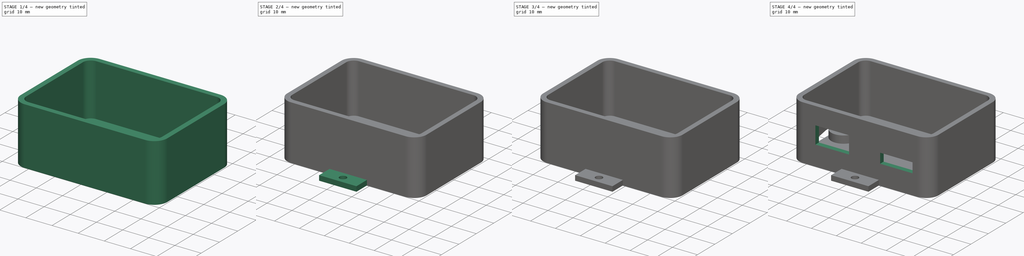
[diagram: build sequence overview — one tinted view per stage of 4, left to right]
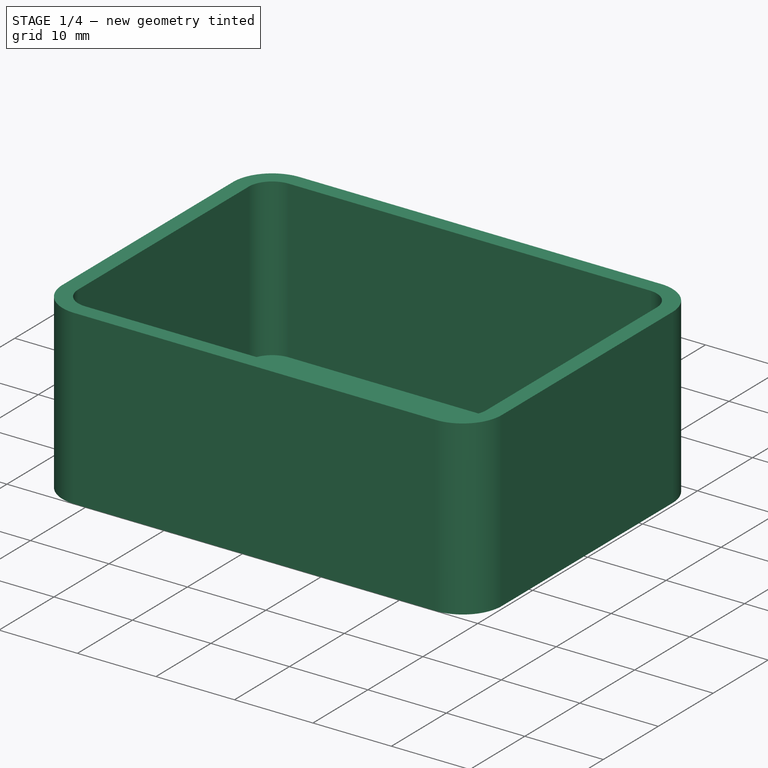
[diagram: stage 1 of 4 — iso view after this stage's code; geometry added in this stage tinted green]
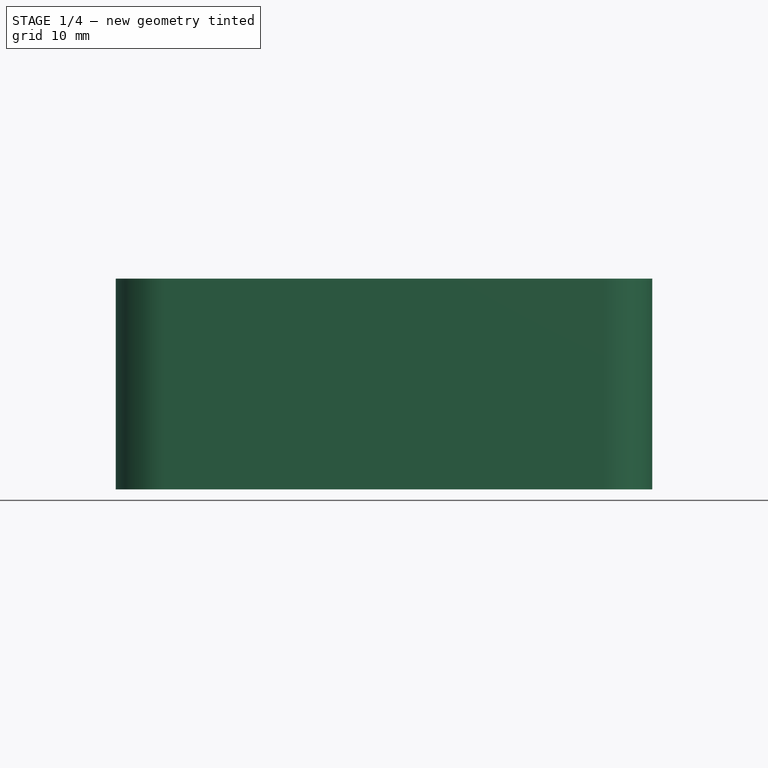
[diagram: stage 1 of 4 — front view after this stage's code; geometry added in this stage tinted green]
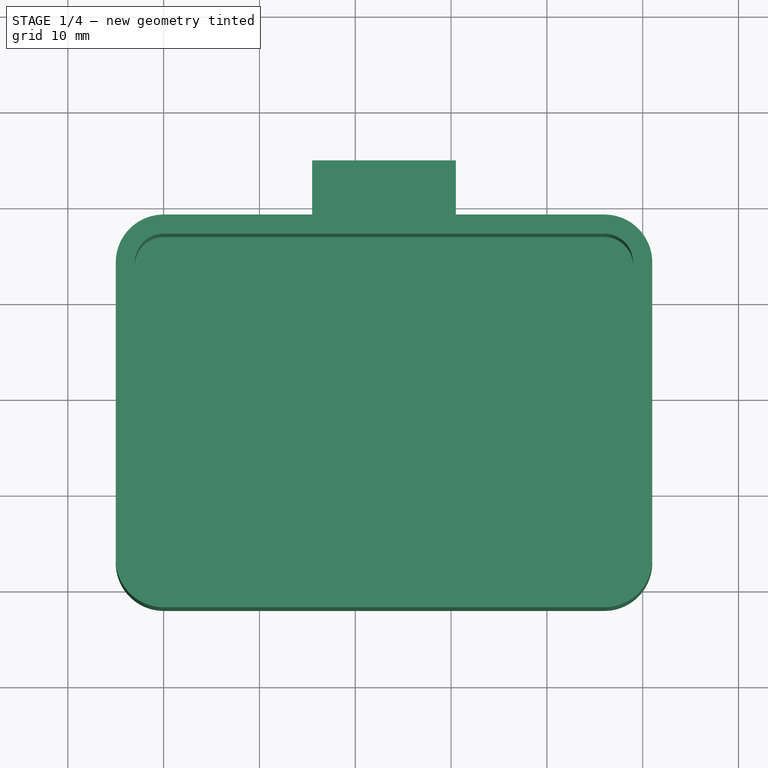
[diagram: stage 1 of 4 — top view after this stage's code; geometry added in this stage tinted green]
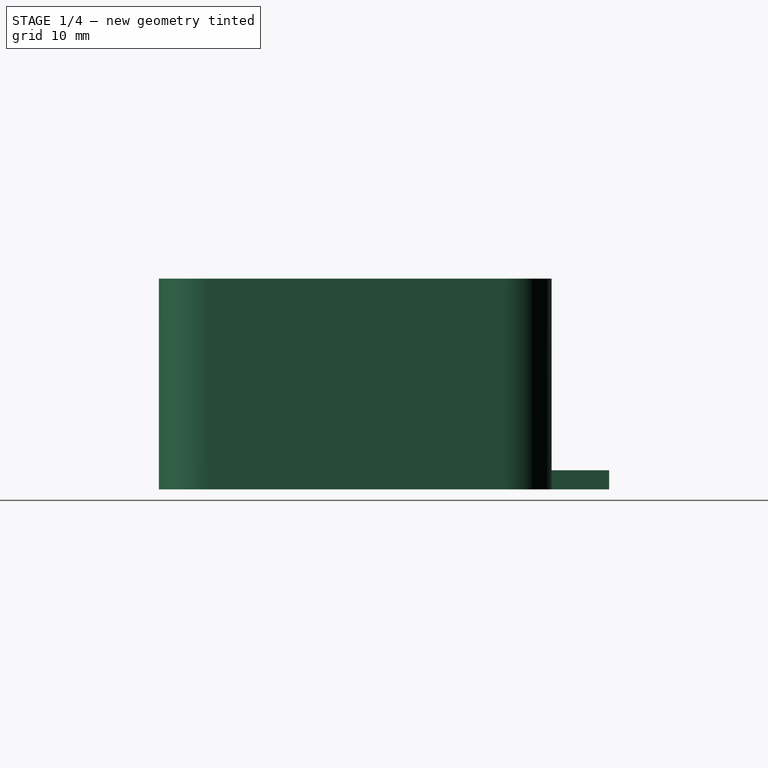
[diagram: stage 1 of 4 — right view after this stage's code; geometry added in this stage tinted green]
FCSTD DOCUMENT  (FreeCAD 0.16R6706 (Git))
Label: adc
License: All rights reserved
LicenseURL: http://en.wikipedia.org/wiki/All_rights_reserved
objects: Sketcher::SketchObject×10, PartDesign::Pad×5, PartDesign::Pocket×5, Part::Thickness×1
note: 31 computed .brp shape members not serialized (recipe doc carries the construction recipe); baked Part::Feature solids carry a one-line shape summary decoded from their .brp

FEATURE [Sketcher::SketchObject] Sketch
  sketch-geometry (8):
    g0: LineSegment StartX=0 StartY=37 StartZ=0 EndX=46 EndY=37 EndZ=0
    g1: LineSegment StartX=49 StartY=34 StartZ=0 EndX=49 EndY=3 EndZ=0
    g2: LineSegment StartX=46 StartY=0 StartZ=0 EndX=0 EndY=0 EndZ=0
    g3: LineSegment StartX=-3 StartY=3 StartZ=0 EndX=-3 EndY=34 EndZ=0
    g4: ArcOfCircle CenterX=0 CenterY=34 CenterZ=0 NormalX=0 NormalY=0 NormalZ=1 Radius=3 StartAngle=1.5708 EndAngle=3.14159
    g5: ArcOfCircle CenterX=0 CenterY=3 CenterZ=0 NormalX=0 NormalY=0 NormalZ=1 Radius=3 StartAngle=3.14159 EndAngle=4.71239
    g6: ArcOfCircle CenterX=46 CenterY=34 CenterZ=0 NormalX=0 NormalY=0 NormalZ=1 Radius=3 StartAngle=0 EndAngle=1.5708
    g7: ArcOfCircle CenterX=46 CenterY=3 CenterZ=0 NormalX=0 NormalY=0 NormalZ=1 Radius=3 StartAngle=4.71239 EndAngle=6.28319
  constraints (19):
    c: Horizontal(g0)
    c: Horizontal(g2)
    c: Vertical(g1)
    c: Vertical(g3)
    c: Tangent(g3,g4) = 1.5708
    c: Tangent(g0,g4) = 1.5708
    c: Tangent(g3,g5) = 1.5708
    c: Tangent(g2,g5) = 1.5708
    c: Tangent(g0,g6) = 1.5708
    c: Tangent(g1,g6) = 1.5708
    c: Tangent(g2,g7) = 1.5708
    c: Tangent(g1,g7) = 1.5708
    c: Radius(g4) = 3
    c: Radius(g5) = 3
    c: Radius(g6) = 3
    c: Radius(g7) = 3
    c: DistanceX(g3,g1) = 52
    c: DistanceY(g2,g0) = 37
    c: Coincident(g-1,g2)
FEATURE [PartDesign::Pad] Pad
  Length = 20
  Length2 = 100
  Sketch = -> Sketch
  Type = 0
FEATURE [Part::Thickness] Thickness
  Faces = -> Pad [Face10]
  Intersection = false
  Join = 2
  Mode = 0
  SelfIntersection = false
  Value = 2
FEATURE [Sketcher::SketchObject] Sketch001
  ExternalGeometry = -> [Thickness]
  Placement = pos=(0,39,0) rot=(0,0.707107,0.707107;3.14159rad)
  Support = -> Thickness [Face13]
  sketch-geometry (4):
    g0: LineSegment StartX=-30.5 StartY=0 StartZ=0 EndX=-15.5 EndY=0 EndZ=0
    g1: LineSegment StartX=-15.5 StartY=0 StartZ=0 EndX=-15.5 EndY=-2 EndZ=0
    g2: LineSegment StartX=-15.5 StartY=-2 StartZ=0 EndX=-30.5 EndY=-2 EndZ=0
    g3: LineSegment StartX=-30.5 StartY=-2 StartZ=0 EndX=-30.5 EndY=0 EndZ=0
  constraints (12):
    c: Coincident(g0,g1)
    c: Coincident(g1,g2)
    c: Coincident(g2,g3)
    c: Coincident(g3,g0)
    c: Horizontal(g0)
    c: Horizontal(g2)
    c: Vertical(g1)
    c: Vertical(g3)
    c: DistanceX(g0,g0) = 15
    c: DistanceY(g2,g0) = 2
    c: DistanceY(g-1,g0) = 0
    c: DistanceX(g0,g-3) = 18.5
FEATURE [PartDesign::Pad] Pad001
  Length = 6
  Length2 = 100
  Sketch = -> Sketch001
  Type = 0
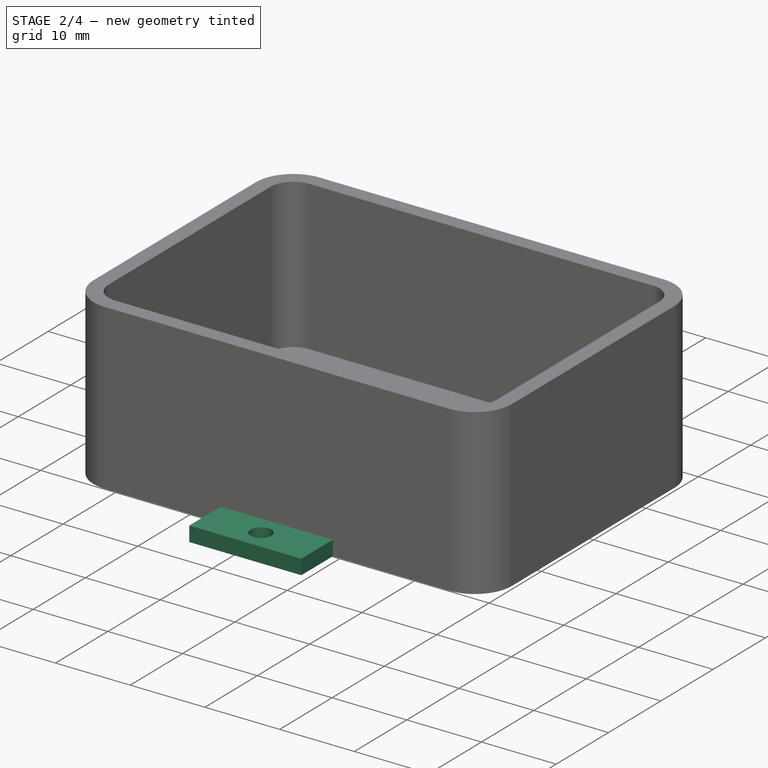
[diagram: stage 2 of 4 — iso view after this stage's code; geometry added in this stage tinted green]
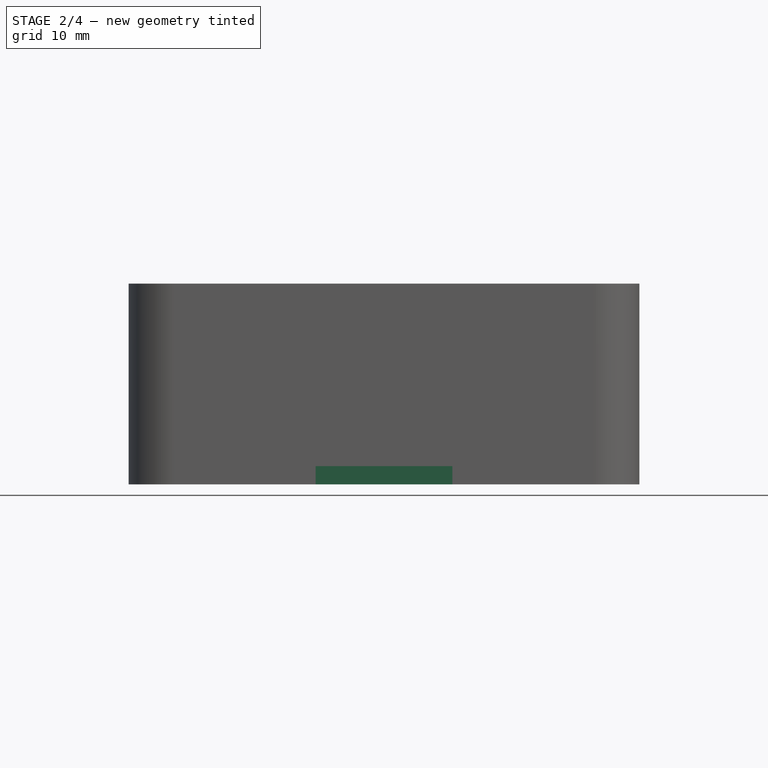
[diagram: stage 2 of 4 — front view after this stage's code; geometry added in this stage tinted green]
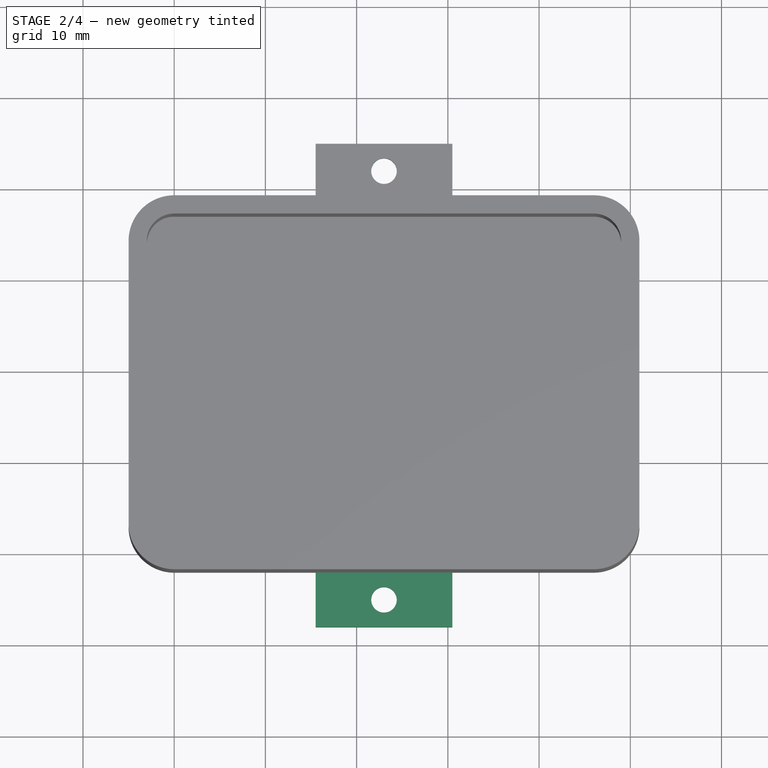
[diagram: stage 2 of 4 — top view after this stage's code; geometry added in this stage tinted green]
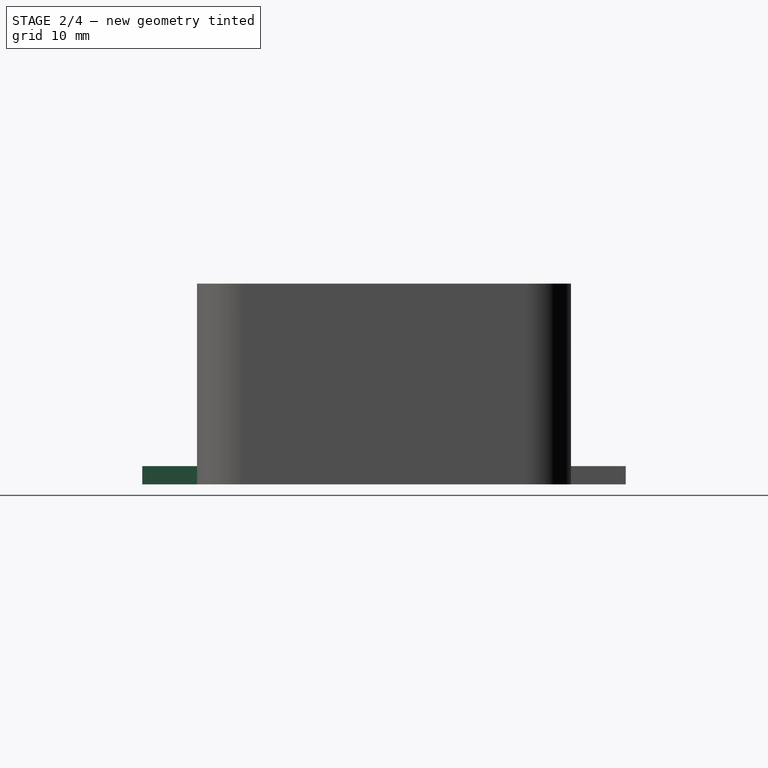
[diagram: stage 2 of 4 — right view after this stage's code; geometry added in this stage tinted green]
FEATURE [Sketcher::SketchObject] Sketch002
  ExternalGeometry = -> [Pad001]
  Support = -> Pad001 [Face21]
  sketch-geometry (1):
    g0: Circle CenterX=23 CenterY=42 CenterZ=0 NormalX=0 NormalY=0 NormalZ=1 Radius=1.4
  constraints (3):
    c: Radius(g0) = 1.4
    c: DistanceY(g-4,g0) = 5
    c: DistanceX(g-5,g0) = 26
FEATURE [PartDesign::Pocket] Pocket
  Length = 5
  Sketch = -> Sketch002
  Type = 1
FEATURE [Sketcher::SketchObject] Sketch003
  ExternalGeometry = -> [Pocket]
  Placement = pos=(0,-2,0) rot=(1,0,0;1.5708rad)
  Support = -> Pocket [Face14]
  sketch-geometry (4):
    g0: LineSegment StartX=15.5 StartY=-2 StartZ=0 EndX=30.5 EndY=-2 EndZ=0
    g1: LineSegment StartX=30.5 StartY=-2 StartZ=0 EndX=30.5 EndY=0 EndZ=0
    g2: LineSegment StartX=30.5 StartY=0 StartZ=0 EndX=15.5 EndY=0 EndZ=0
    g3: LineSegment StartX=15.5 StartY=0 StartZ=0 EndX=15.5 EndY=-2 EndZ=0
  constraints (12):
    c: Coincident(g0,g1)
    c: Coincident(g1,g2)
    c: Coincident(g2,g3)
    c: Coincident(g3,g0)
    c: Horizontal(g0)
    c: Horizontal(g2)
    c: Vertical(g1)
    c: Vertical(g3)
    c: DistanceX(g0,g0) = 15
    c: DistanceX(g-3,g0) = 18.5
    c: DistanceY(g0,g2) = 2
    c: DistanceY(g-1,g2) = 0
FEATURE [PartDesign::Pad] Pad002
  Length = 6
  Length2 = 100
  Sketch = -> Sketch003
  Type = 0
FEATURE [Sketcher::SketchObject] Sketch004
  ExternalGeometry = -> [Pad002]
  Placement = pos=(0,0,-2) rot=(1,0,0;3.14159rad)
  Support = -> Pad002 [Face27]
  sketch-geometry (1):
    g0: Circle CenterX=23 CenterY=5 CenterZ=0 NormalX=0 NormalY=0 NormalZ=1 Radius=1.4
  constraints (3):
    c: Radius(g0) = 1.4
    c: DistanceX(g-3,g0) = 26
    c: DistanceY(g-1,g0) = 5
FEATURE [PartDesign::Pocket] Pocket001
  Length = 5
  Sketch = -> Sketch004
  Type = 1
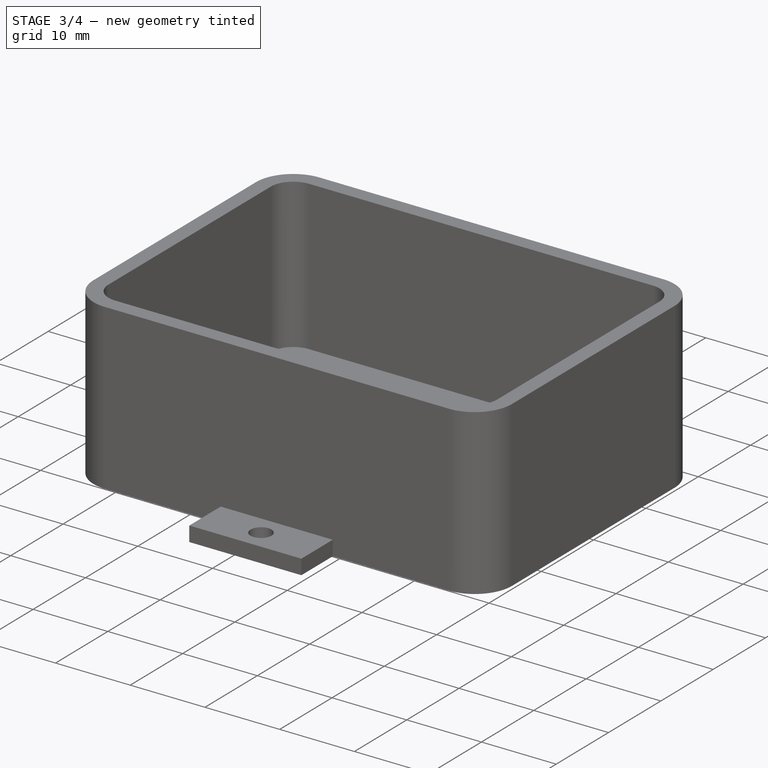
[diagram: stage 3 of 4 — iso view after this stage's code; geometry added in this stage tinted green]
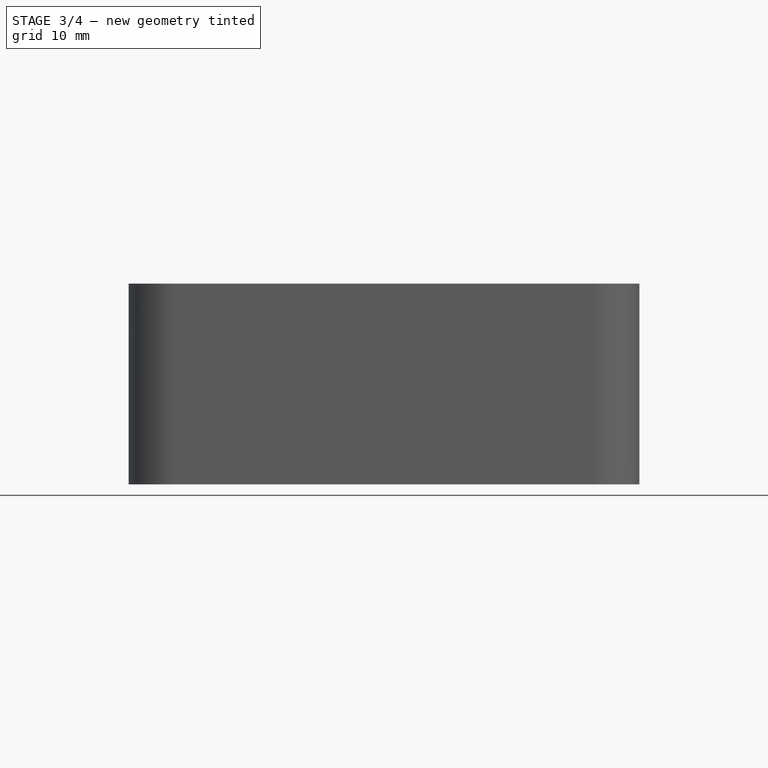
[diagram: stage 3 of 4 — front view after this stage's code; geometry added in this stage tinted green]
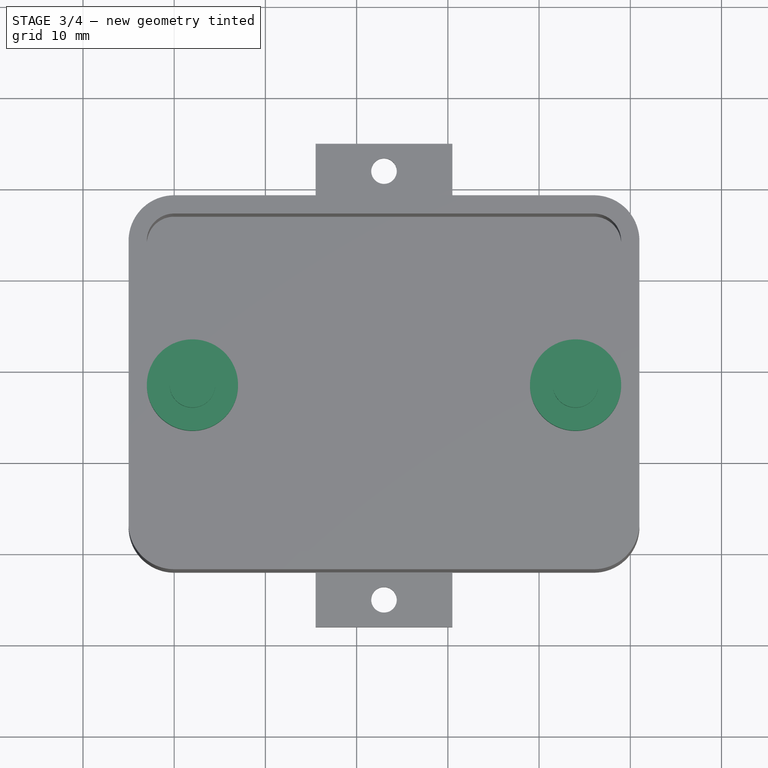
[diagram: stage 3 of 4 — top view after this stage's code; geometry added in this stage tinted green]
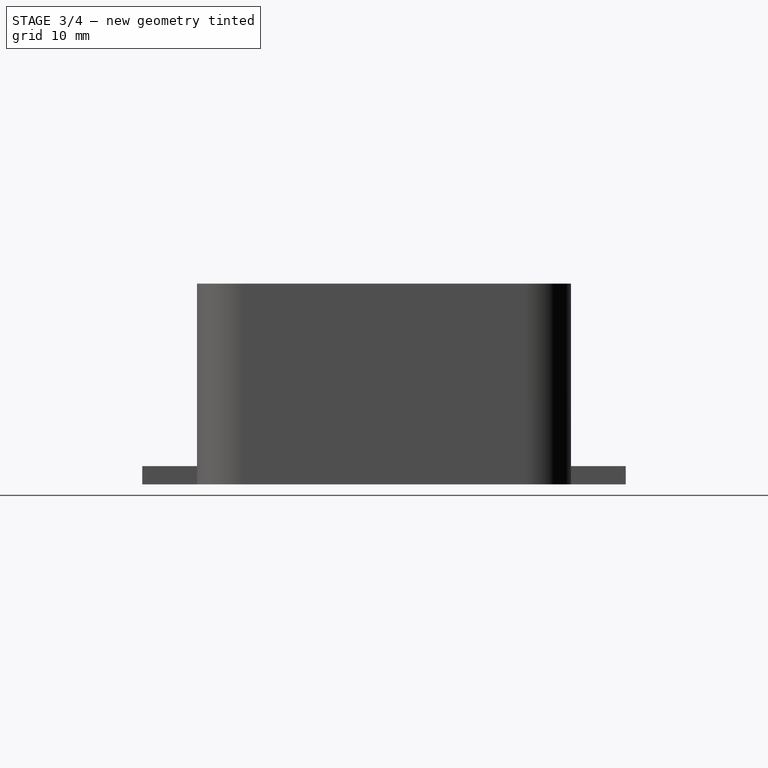
[diagram: stage 3 of 4 — right view after this stage's code; geometry added in this stage tinted green]
FEATURE [Sketcher::SketchObject] Sketch005
  ExternalGeometry = -> [Pocket001]
  Placement = pos=(0,0,-2) rot=(1,0,0;3.14159rad)
  Support = -> Pocket001 [Face19]
  sketch-geometry (2):
    g0: Circle CenterX=2 CenterY=-18.5 CenterZ=0 NormalX=0 NormalY=0 NormalZ=1 Radius=2.5
    g1: Circle CenterX=44 CenterY=-18.5 CenterZ=0 NormalX=0 NormalY=0 NormalZ=1 Radius=2.5
  constraints (6):
    c: DistanceY(g0,g-1) = 18.5
    c: DistanceY(g1,g-1) = 18.5
    c: DistanceX(g0,g1) = 42
    c: Radius(g0) = 2.5
    c: Radius(g1) = 2.5
    c: DistanceX(g-3,g0) = 5
FEATURE [PartDesign::Pad] Pad003
  Length = 7
  Length2 = 100
  Reversed = true
  Sketch = -> Sketch005
  Type = 0
FEATURE [Sketcher::SketchObject] Sketch006
  ExternalGeometry = -> [Pad003]
  Placement = pos=(0,0,-2) rot=(1,0,0;3.14159rad)
  Support = -> Pad003 [Face23]
  sketch-geometry (2):
    g0: Circle CenterX=2 CenterY=-18.5 CenterZ=0 NormalX=0 NormalY=0 NormalZ=1 Radius=5
    g1: Circle CenterX=44 CenterY=-18.5 CenterZ=0 NormalX=0 NormalY=0 NormalZ=1 Radius=5
  constraints (4):
    c: Coincident(g0,g-3)
    c: Coincident(g1,g-4)
    c: Radius(g0) = 5
    c: Radius(g1) = 5
FEATURE [PartDesign::Pad] Pad004
  Length = 5
  Length2 = 100
  Reversed = true
  Sketch = -> Sketch006
  Type = 0
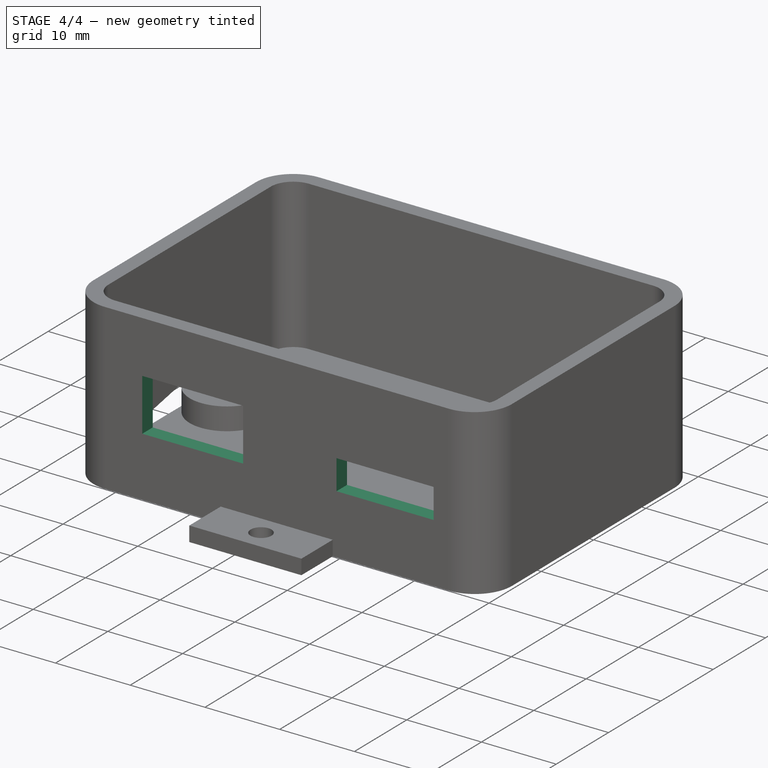
[diagram: stage 4 of 4 — iso view after this stage's code; geometry added in this stage tinted green]
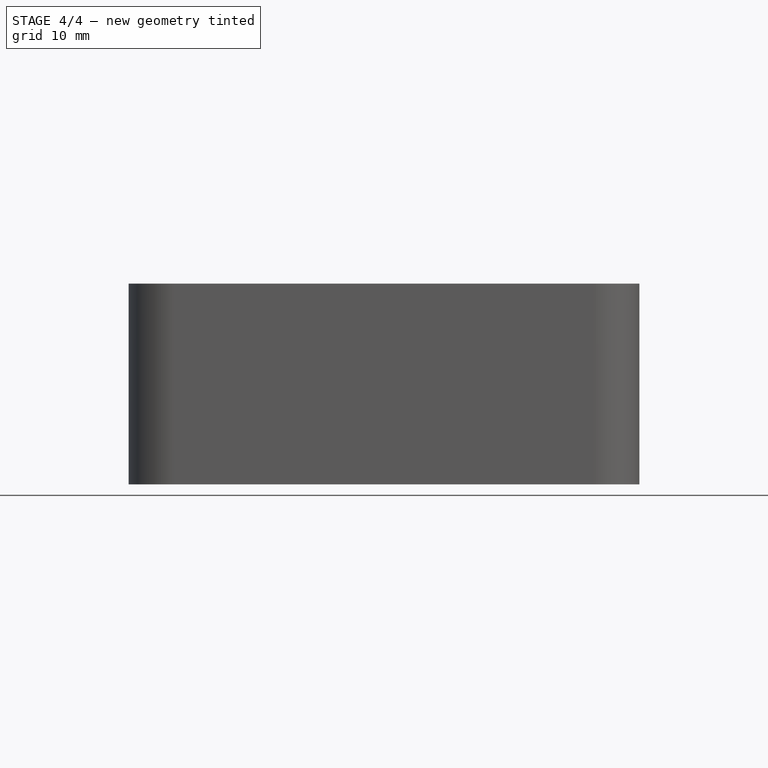
[diagram: stage 4 of 4 — front view after this stage's code; geometry added in this stage tinted green]
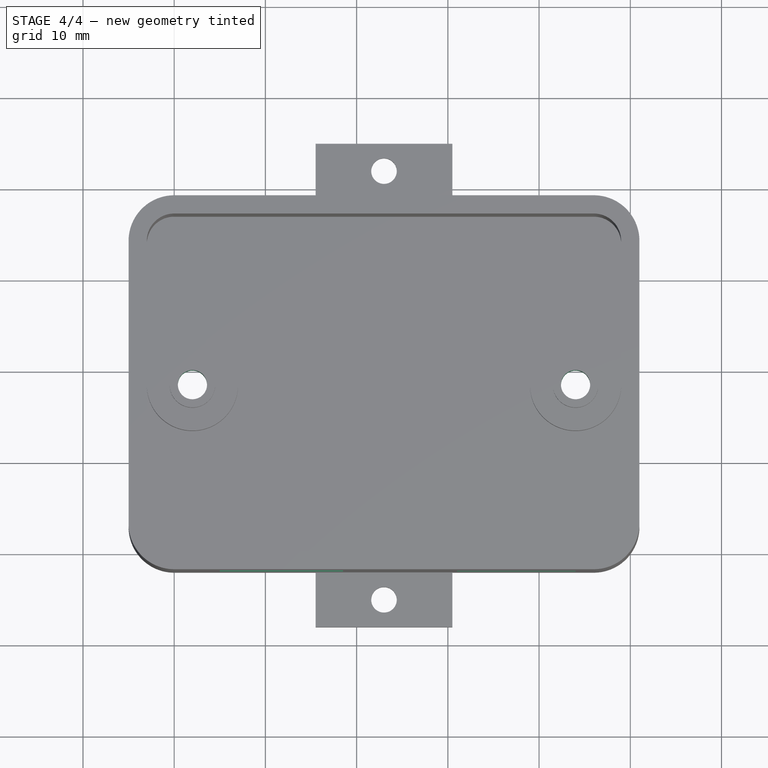
[diagram: stage 4 of 4 — top view after this stage's code; geometry added in this stage tinted green]
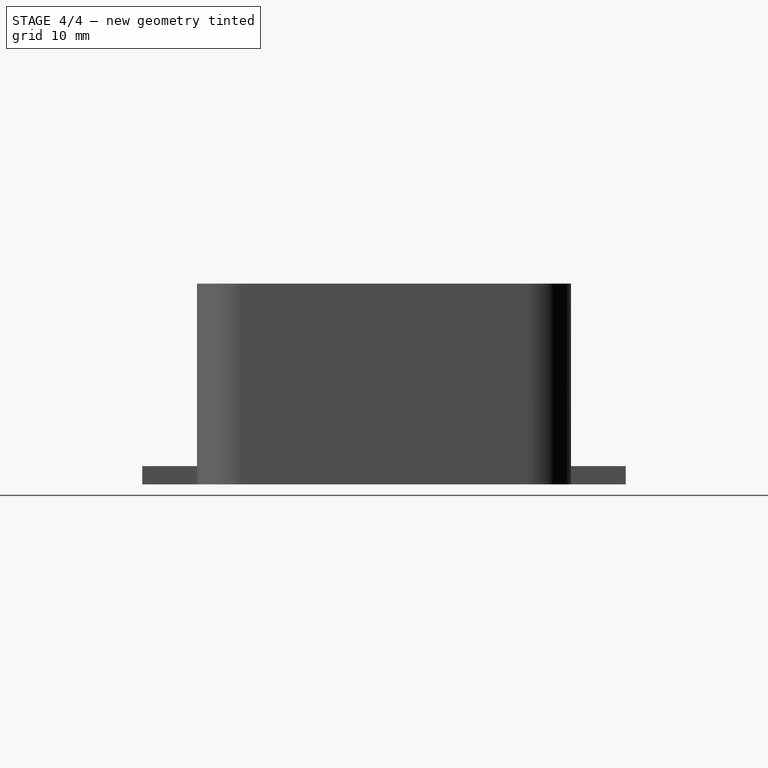
[diagram: stage 4 of 4 — right view after this stage's code; geometry added in this stage tinted green]
FEATURE [Sketcher::SketchObject] Sketch007
  ExternalGeometry = -> [Pad004]
  Placement = pos=(0,0,-2) rot=(1,0,0;3.14159rad)
  Support = -> Pad004 [Face24]
  sketch-geometry (2):
    g0: Circle CenterX=2 CenterY=-18.5 CenterZ=0 NormalX=0 NormalY=0 NormalZ=1 Radius=1.6
    g1: Circle CenterX=44 CenterY=-18.5 CenterZ=0 NormalX=0 NormalY=0 NormalZ=1 Radius=1.6
  constraints (4):
    c: Coincident(g0,g-3)
    c: Coincident(g1,g-4)
    c: Radius(g0) = 1.6
    c: Radius(g1) = 1.6
FEATURE [PartDesign::Pocket] Pocket002
  Length = 5
  Sketch = -> Sketch007
  Type = 1
FEATURE [Sketcher::SketchObject] Sketch008
  ExternalGeometry = -> [Pocket002]
  Placement = pos=(0,0,-2) rot=(1,0,0;3.14159rad)
  Support = -> Pocket002 [Face24]
  sketch-geometry (2):
    g0: Circle CenterX=2 CenterY=-18.5 CenterZ=0 NormalX=0 NormalY=0 NormalZ=1 Radius=3.5
    g1: Circle CenterX=44 CenterY=-18.5 CenterZ=0 NormalX=0 NormalY=0 NormalZ=1 Radius=3.5
  constraints (4):
    c: Coincident(g-4,g0)
    c: Coincident(g-3,g1)
    c: Radius(g0) = 3.5
    c: Radius(g1) = 3.5
FEATURE [PartDesign::Pocket] Pocket003
  Length = 2.8
  Sketch = -> Sketch008
  Type = 0
FEATURE [Sketcher::SketchObject] Sketch009
  ExternalGeometry = -> [Pocket003]
  Placement = pos=(0,-2,0) rot=(1,0,0;1.5708rad)
  Support = -> Pocket003 [Face17]
  sketch-geometry (8):
    g0: LineSegment StartX=5 StartY=13 StartZ=0 EndX=18.5 EndY=13 EndZ=0
    g1: LineSegment StartX=18.5 StartY=13 StartZ=0 EndX=18.5 EndY=6 EndZ=0
    g2: LineSegment StartX=18.5 StartY=6 StartZ=0 EndX=5 EndY=6 EndZ=0
    g3: LineSegment StartX=5 StartY=6 StartZ=0 EndX=5 EndY=13 EndZ=0
    g4: LineSegment StartX=31 StartY=10 StartZ=0 EndX=44 EndY=10 EndZ=0
    g5: LineSegment StartX=44 StartY=10 StartZ=0 EndX=44 EndY=6 EndZ=0
    g6: LineSegment StartX=44 StartY=6 StartZ=0 EndX=31 EndY=6 EndZ=0
    g7: LineSegment StartX=31 StartY=6 StartZ=0 EndX=31 EndY=10 EndZ=0
  constraints (24):
    c: Coincident(g0,g1)
    c: Coincident(g1,g2)
    c: Coincident(g2,g3)
    c: Coincident(g3,g0)
    c: Horizontal(g0)
    c: Horizontal(g2)
    c: Vertical(g1)
    c: Vertical(g3)
    c: DistanceY(g-1,g2) = 6
    c: DistanceX(g-3,g0) = 8
    c: DistanceX(g-3,g0) = 21.5
    c: DistanceY(g-1,g0) = 13
    c: Coincident(g4,g5)
    c: Coincident(g5,g6)
    c: Coincident(g6,g7)
    c: Coincident(g7,g4)
    c: Horizontal(g4)
    c: Horizontal(g6)
    c: Vertical(g5)
    c: Vertical(g7)
    c: DistanceY(g-1,g6) = 6
    c: DistanceX(g-3,g4) = 34
    c: DistanceY(g6,g4) = 4
    c: DistanceX(g4,g4) = 13
FEATURE [PartDesign::Pocket] Pocket004
  Length = 5
  Sketch = -> Sketch009
  Type = 2
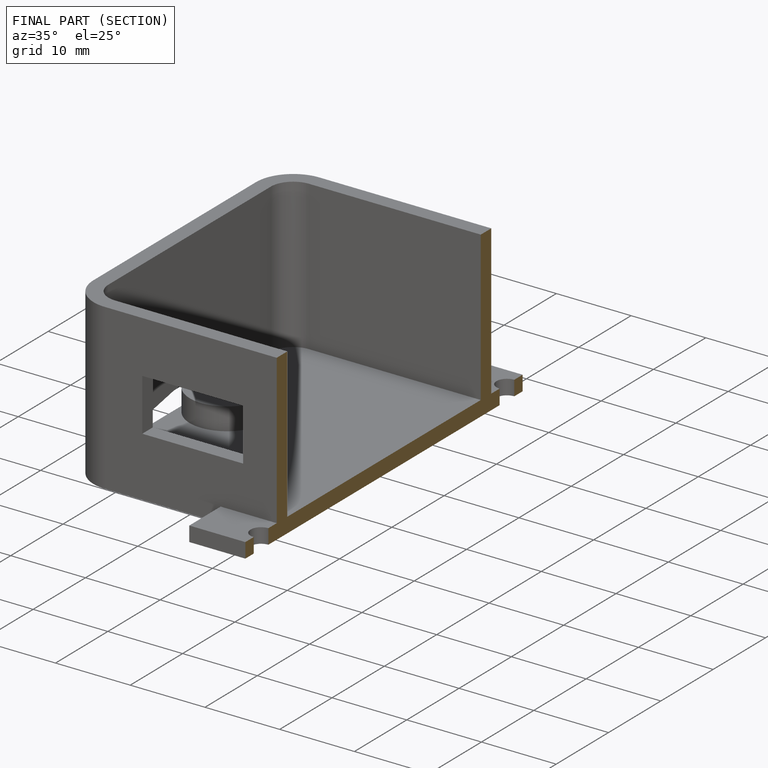
[diagram: finished part — half-section view (interior)]
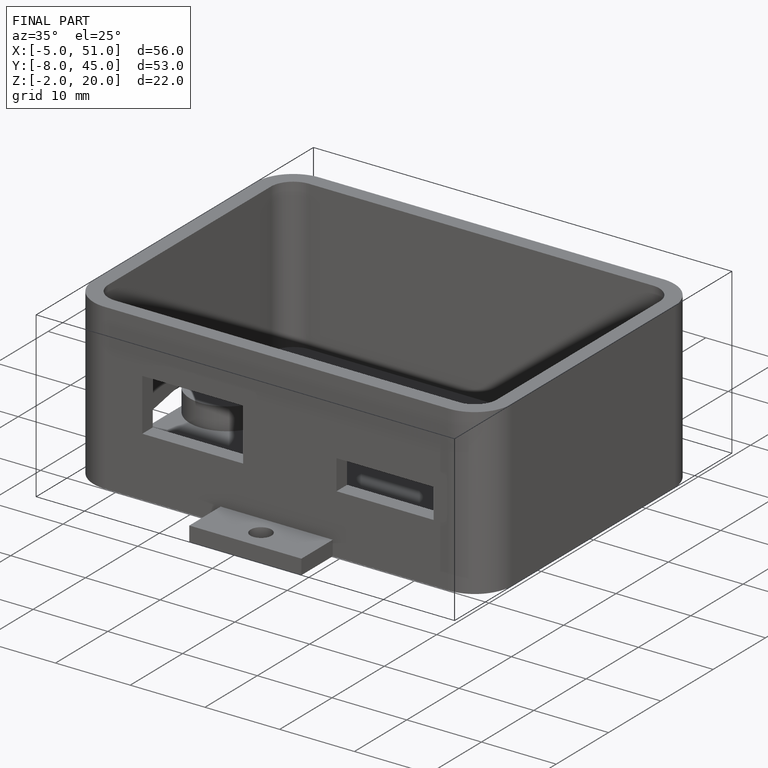
[diagram: finished part — iso view with bounding-box wireframe]
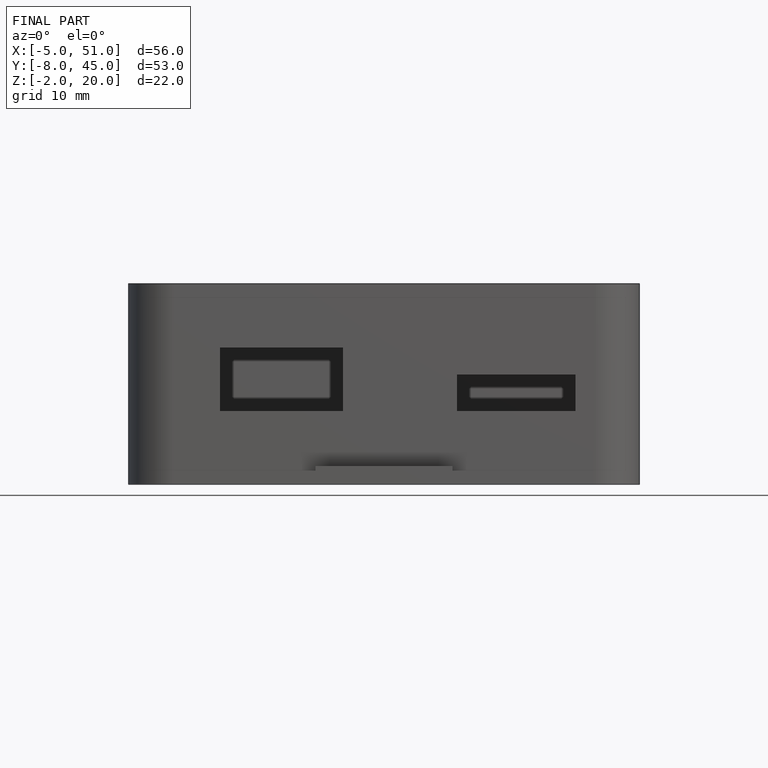
[diagram: finished part — front view with bounding-box wireframe]
